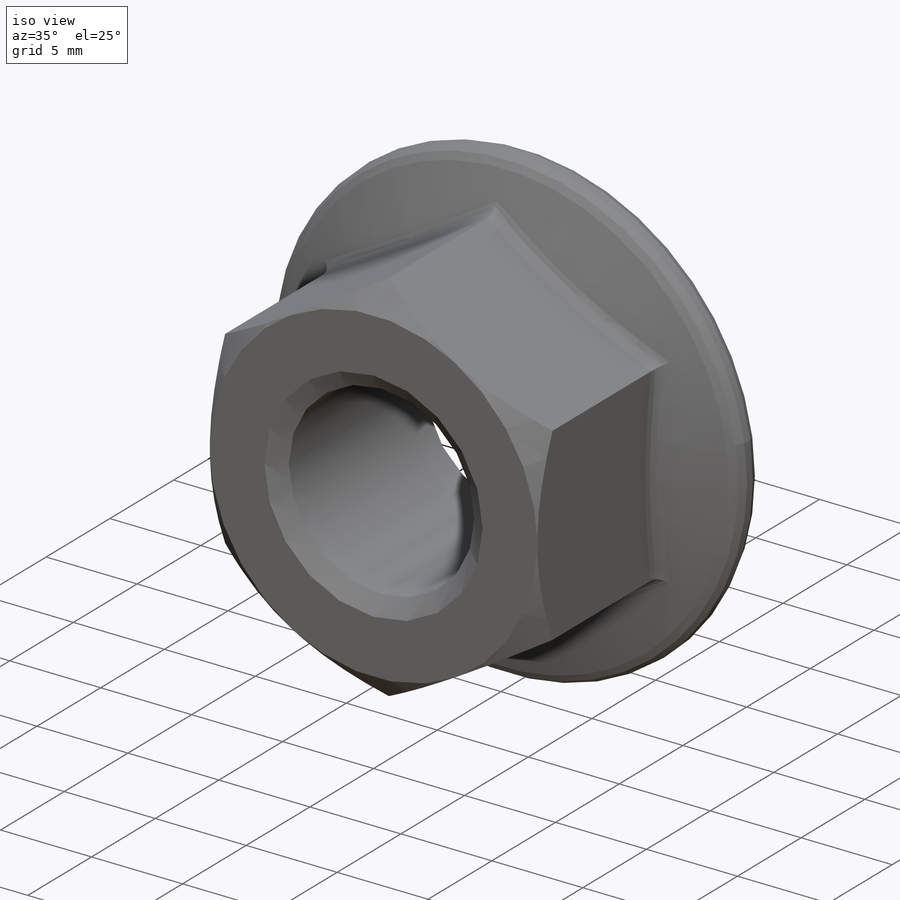
[diagram: iso view]
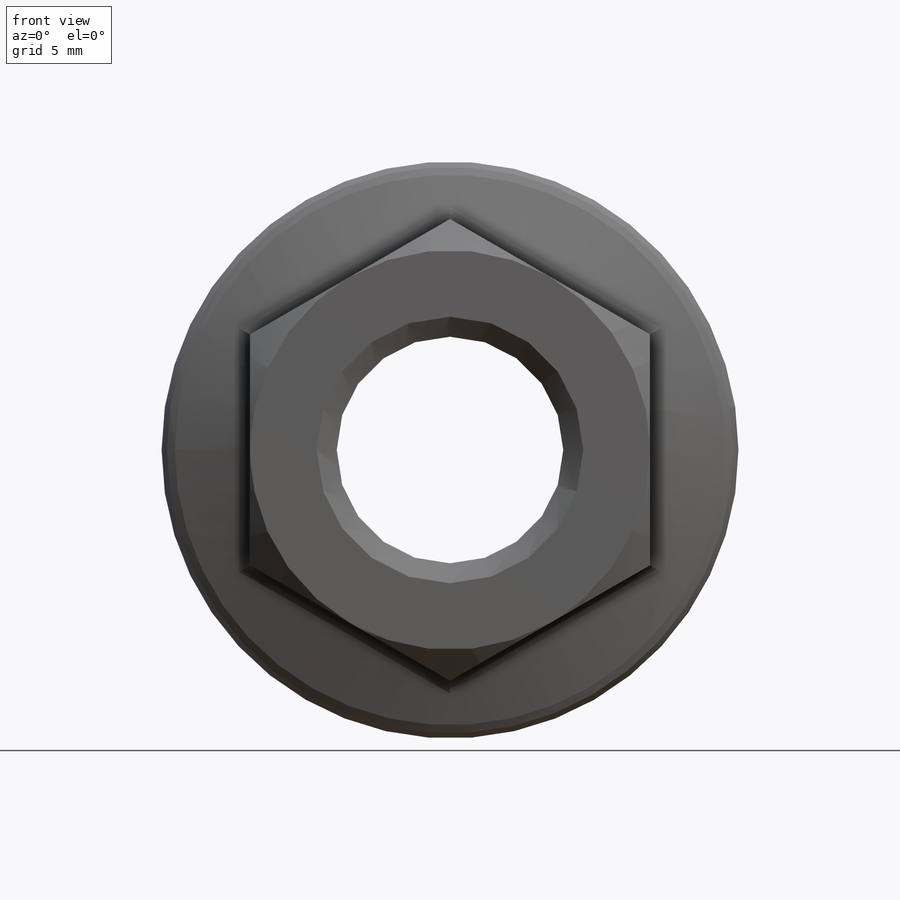
[diagram: front view]
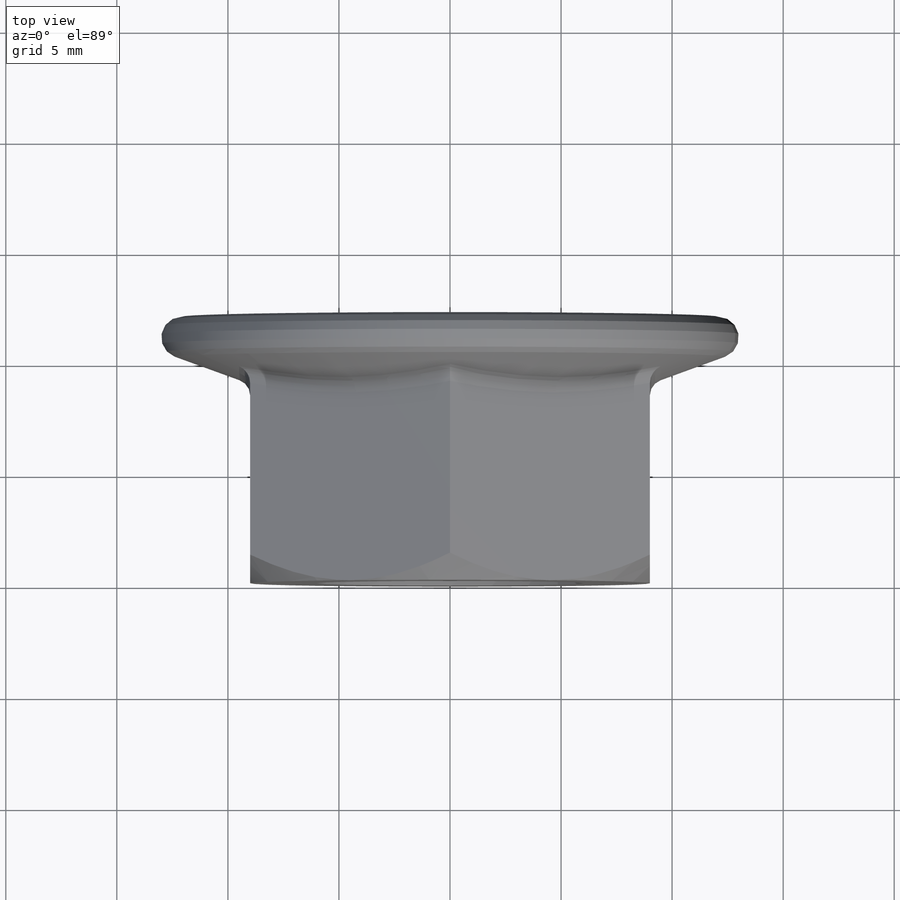
[diagram: top view]
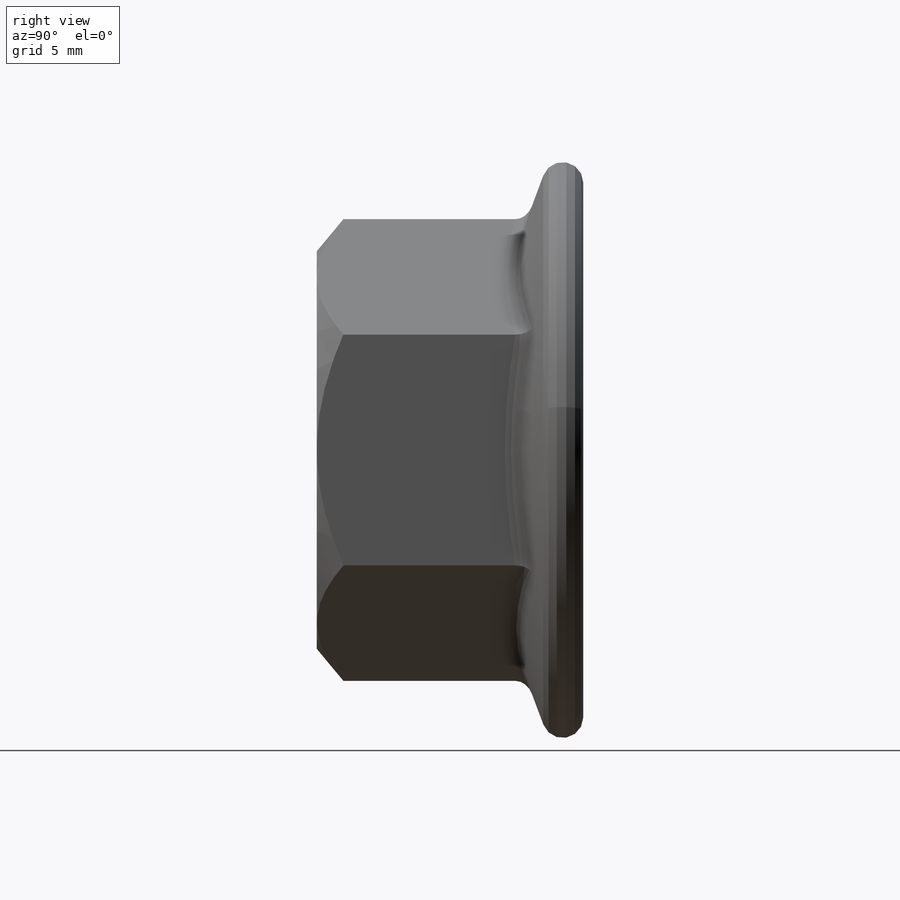
[diagram: right view]
SOLIDWORKS PART (.sldprt)
format: sldprt  version: not decoded by parser v0  size: 307,712 bytes
history: native  units: mm
features: sketch x5, revolve x4, plane x3, cut_revolve x3, material x1, extrude x1, thread x1, pattern_linear x1, fillet x1 (+12 scaffold rows collapsed; 1 parser-record rows omitted)
feature tree (33):
  parser-record x1  (decoder bookkeeping rows leaked as tree rows — omitted from the tree; the rows remain in map.json)
  scaffold x12  (default folders/planes/origin — collapsed)
  material  "Material <not specified>"
  plane  "Plane1"
  plane  "Plane2"
  plane  "Plane3"
  sketch  "BaseNutSke"  dims[c1.Tap_drill=10.2mm c1.D1=50.8mm c2.D1=30.0deg c2.D2=~24.797543mm c3.D2=60.0deg c3.D3=50.8mm c4.D3=30.0deg c4.D4=~24.797543mm c5.D4=60.0deg c6.D4=~24.797543mm c7.D4=60.0deg c8.D4=~24.797543mm c9.D4=60.0deg c9.Width_flats=18.0mm c9.D1=~21.475302mm c9.D2=~21.475302mm c10.D1=~21.475302mm c10.D2=9.0mm c10.D3=9.0mm c11.D1=~24.797543mm c12.D1=120.0deg c13.D1=~23.397294mm c14.D1=120.0deg c14.D4=9.0mm]
  extrude  "BaseNut"  [1 undecoded]
  thread  "ThreadCosmetic"  [2 undecoded]
  cut_revolve  "EndChamfer"  [1 undecoded]
  sketch  "Sketch5"
  pattern_linear  "ThdSchPat"  [2 undecoded]
  cut_revolve  "ThreadSchematic"  [1 undecoded]
  sketch  "ThdSchSke"  dims[c1.D1=~4.490128mm c2.D1=90.0deg c3.D1=~4.490128mm c3.VeeAngle=70.0deg c4.D1=19.5834mm c4.SideAngle=55.0deg c5.D1=~4.490128mm c5.SideAngle=55.0deg c5.ThreadDepth=2.54mm c6.ThreadDepth=3.175mm c6.Thread_Major=6.35mm c6.D1=~9.573347mm c6.D2=~9.428305mm c6.OverCut=5.1mm c6.Tap_Drill=10.2mm c6.Advance=1.27mm c6.Thread_major=12.0mm c7.Advance=1.75mm c7.D1=6.35mm c7.D2=0.0254mm c8.D1=0.0254mm c9.D1=360.0deg c9.Num_threads=8.0 c9.Advance=~1.707029mm c9.D2=1.0 c9.D4=50.0mm c10.D1=~8.980256mm c11.D1=315.0deg c12.D1=~8.980256mm c13.D1=45.0deg c13.D2=~8.94581mm c14.D2=~1.952549deg c14.D3=6.35mm c15.D2=25.7048mm c15.D1=~6.352235mm c16.D1=35.0deg c16.D2=12.7mm c16.D3=12.7mm c17.D2=22.5552mm c17.D3=25.4mm c17.D4=12.7mm c18.D3=12.7mm c18.D2=0.0508mm c18.Offset1=25.4254mm c18.ThreadMajor=12.7mm c18.ChamferDepth=0.99mm c18.Offset2=12.0762mm c19.ThreadMajor=6.0mm c19.Offset1=12.0254mm c19.D1=360.0deg c19.Thread_major=12.0mm c19.Thickness=12.0mm]
  sketch  "Sketch6"  dims[c1.D1=15.875mm c2.D1=0.75deg c2.D2=~13.58651mm c3.D2=20.0deg c3.Flange_dia=~31.453751mm c3.D3=8.75mm c3.Flange_flatdia=22.225mm c3.Flange_thickness=3.0mm c4.Flange_flatdia=35.0mm c4.Flange_dia=21.4mm c4.D1=~1.259054mm c5.D1=5.0deg c5.Flange_thickness=3.0mm c5.Flange_dia=42.8mm c6.D1=17.5mm c6.Flange_flatdia=39.9mm c6.Flange_dia=21.4mm c6.D2=~3.215672mm c7.D2=1.5deg c7.D3=14.35mm c8.D3=20.0deg c9.D3=~13.449435mm c10.D3=20.0deg c10.Flange_thickness=3.0mm c10.D4=21.4mm c11.Flange_thickness=1.0mm c11.Flange_dia=21.4mm c11.D2=~10.84711mm c12.D2=5.0deg c12.D3=3.0mm c12.D4=~5.091794mm c13.D4=20.0deg c13.D5=39.9mm c13.D6=49.0mm c13.Flange_thickness=1.8mm c13.Flange_dia=21.4mm c13.D2=~8.250412mm c14.D2=20.0deg c14.Flange_dia=26.0mm c15.D2=~11.908533mm c16.D2=20.0deg c16.D1=10.2mm]
  revolve  "Flange"  Angle=360deg
  sketch  "Sketch3"  dims[c1.D1=9.0mm c1.D2=1.2mm c1.D3=12.7mm c1.D4=12.7mm c1.D5=10.9093mm c1.D6=~10.998523mm c2.D6=~179.413404deg c3.D6=~2.539714mm c3.D3=12.7mm c3.D5=6.0mm]
  cut_revolve  "Double-Chamfer"  Angle=360deg
  fillet  "FlangeFillet"  Radius=0.72mm Flange_fillet_radius=0.72mm
  revolve  "ConfigurationName"  CopiedFlag=1  [1 undecoded]
  revolve  "PartNumberID"  [1 undecoded]
  revolve  "ConfigurationName"  CopiedFlag=0  [1 undecoded]
decode coverage: 9 of 16 modeling features carry decoded parameters
note: ~ marks probable driven/reference dimensions
note: 10 parameter values undecoded
summary: no parameter record found for 7 features
note: suppression state not decoded; provenance and decode notes live in map.json
